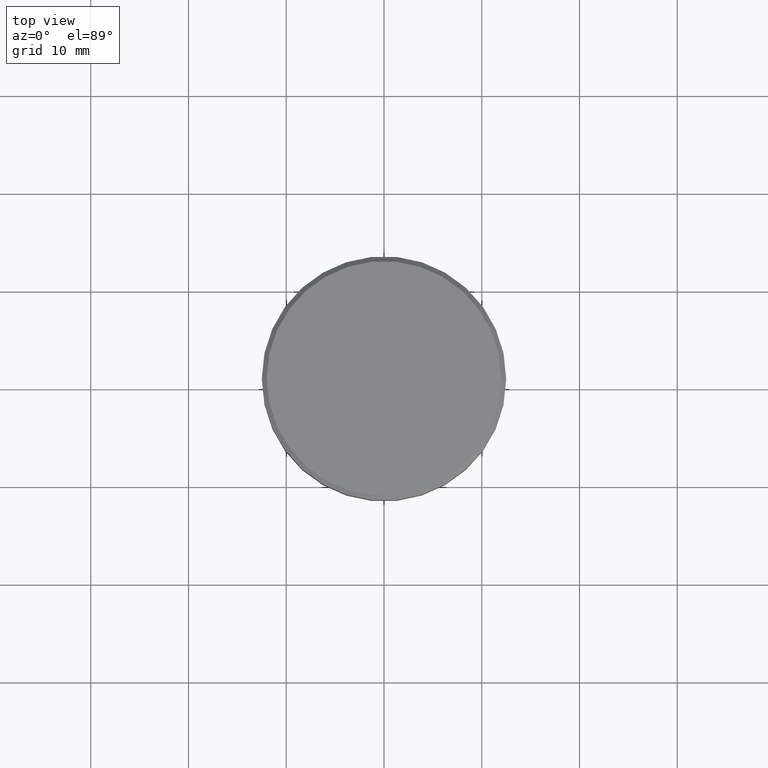
[diagram: clean part render]
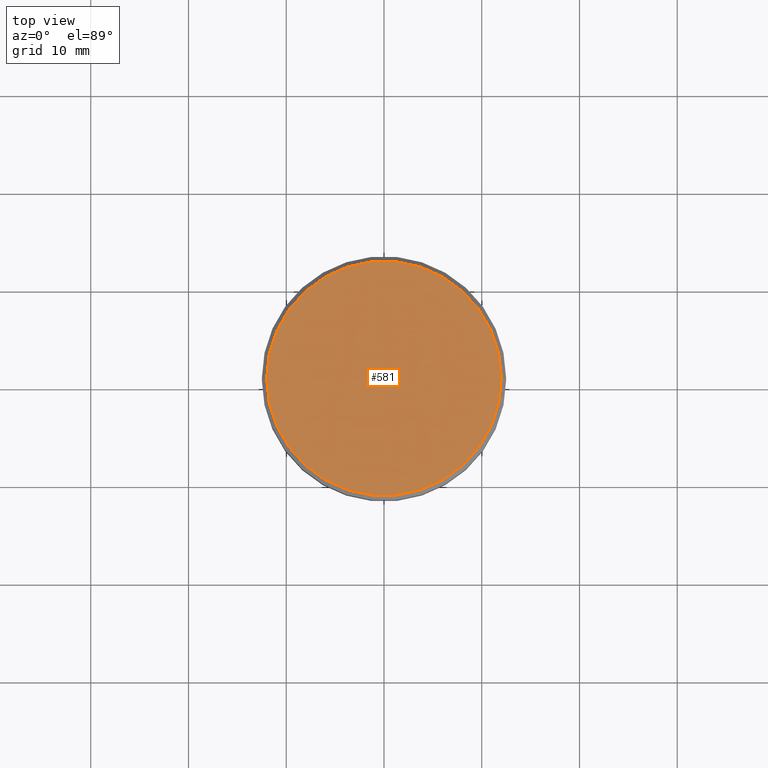
[diagram: same view with one face highlighted and labeled with its STEP entity id]
A machine part, top view. The second image highlights one B-rep face of the part: STEP entity #581.
In plain terms, the highlighted planar face has unit normal (0, -0, 1).
Its self-contained STEP definition (entity closure, byte-faithful):
#49 = CARTESIAN_POINT ( 'NONE',  ( -12.00000000000001776, 0.000000000000000000, 0.000000000000000000 ) ) ;
#138 = EDGE_CURVE ( 'NONE', #1036, #639, #153, .T. ) ;
#153 = CIRCLE ( 'NONE', #699, 12.00000000000001776 ) ;
#202 = DIRECTION ( 'NONE',  ( -0.000000000000000000, -0.000000000000000000, 1.000000000000000000 ) ) ;
#258 = PLANE ( 'NONE',  #980 ) ;
#381 = DIRECTION ( 'NONE',  ( 1.000000000000000000, 0.000000000000000000, 0.000000000000000000 ) ) ;
#469 = EDGE_LOOP ( 'NONE', ( #668, #1012 ) ) ;
#581 = ADVANCED_FACE ( 'NONE', ( #592 ), #258, .T. ) ;
#592 = FACE_OUTER_BOUND ( 'NONE', #469, .T. ) ;
#599 = CARTESIAN_POINT ( 'NONE',  ( 12.00000000000001776, 1.500192328955508720E-15, 0.000000000000000000 ) ) ;
#639 = VERTEX_POINT ( 'NONE', #599 ) ;
#668 = ORIENTED_EDGE ( 'NONE', *, *, #138, .T. ) ;
#699 = AXIS2_PLACEMENT_3D ( 'NONE', #754, #1038, #831 ) ;
#751 = CARTESIAN_POINT ( 'NONE',  ( 0.000000000000000000, 0.000000000000000000, 0.000000000000000000 ) ) ;
#754 = CARTESIAN_POINT ( 'NONE',  ( 0.000000000000000000, 0.000000000000000000, 0.000000000000000000 ) ) ;
#776 = CARTESIAN_POINT ( 'NONE',  ( 0.000000000000000000, 0.000000000000000000, 0.000000000000000000 ) ) ;
#831 = DIRECTION ( 'NONE',  ( 1.000000000000000000, 0.000000000000000000, 0.000000000000000000 ) ) ;
#882 = AXIS2_PLACEMENT_3D ( 'NONE', #751, #202, #381 ) ;
#980 = AXIS2_PLACEMENT_3D ( 'NONE', #776, #1070, #984 ) ;
#984 = DIRECTION ( 'NONE',  ( 1.000000000000000000, 0.000000000000000000, 0.000000000000000000 ) ) ;
#1012 = ORIENTED_EDGE ( 'NONE', *, *, #1159, .T. ) ;
#1036 = VERTEX_POINT ( 'NONE', #49 ) ;
#1038 = DIRECTION ( 'NONE',  ( -0.000000000000000000, -0.000000000000000000, 1.000000000000000000 ) ) ;
#1070 = DIRECTION ( 'NONE',  ( 0.000000000000000000, -0.000000000000000000, 1.000000000000000000 ) ) ;
#1150 = CIRCLE ( 'NONE', #882, 12.00000000000001776 ) ;
#1159 = EDGE_CURVE ( 'NONE', #639, #1036, #1150, .T. ) ;